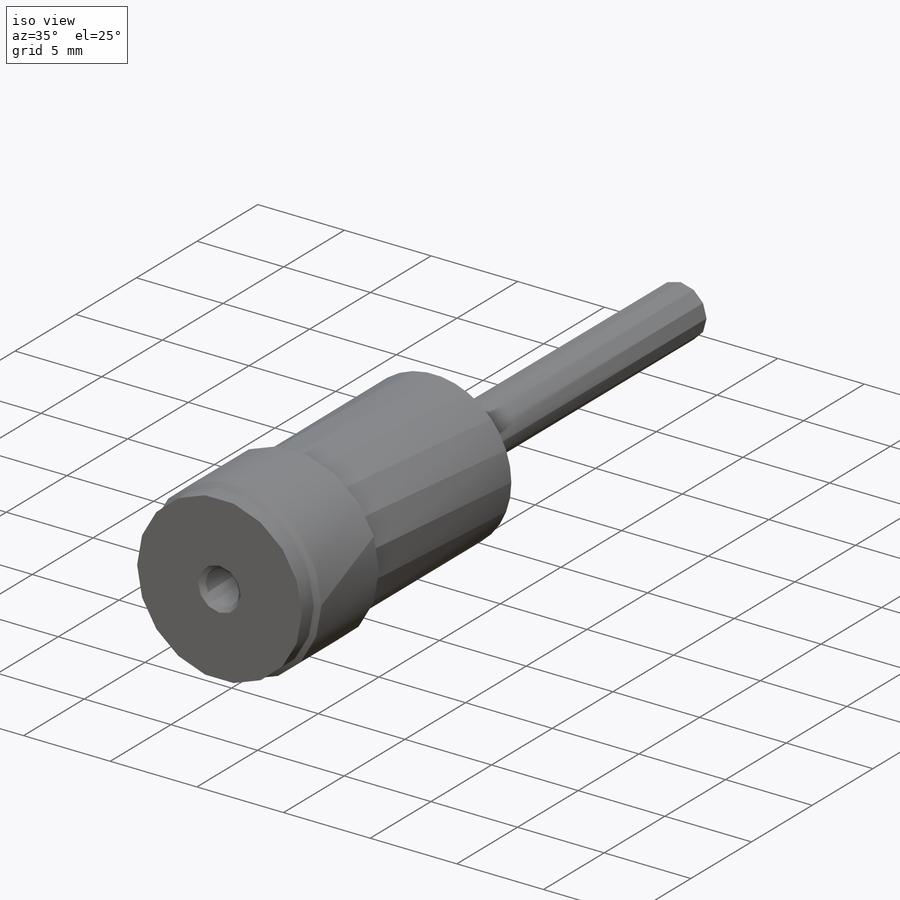
[diagram: iso view]
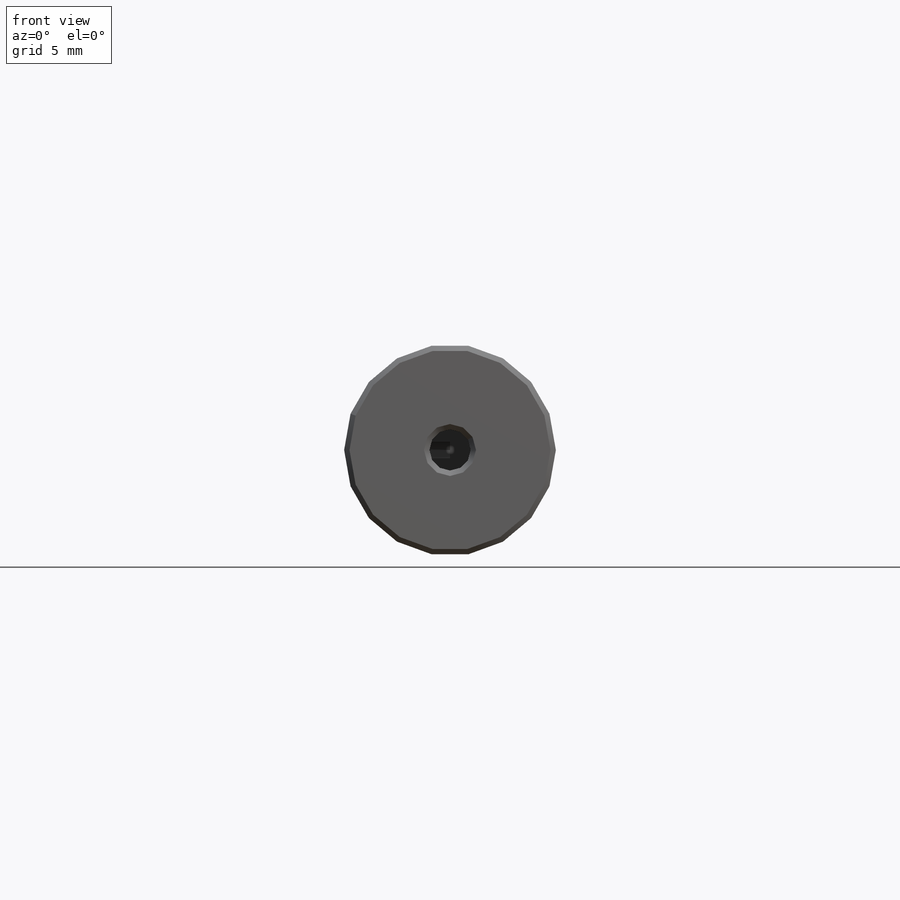
[diagram: front view]
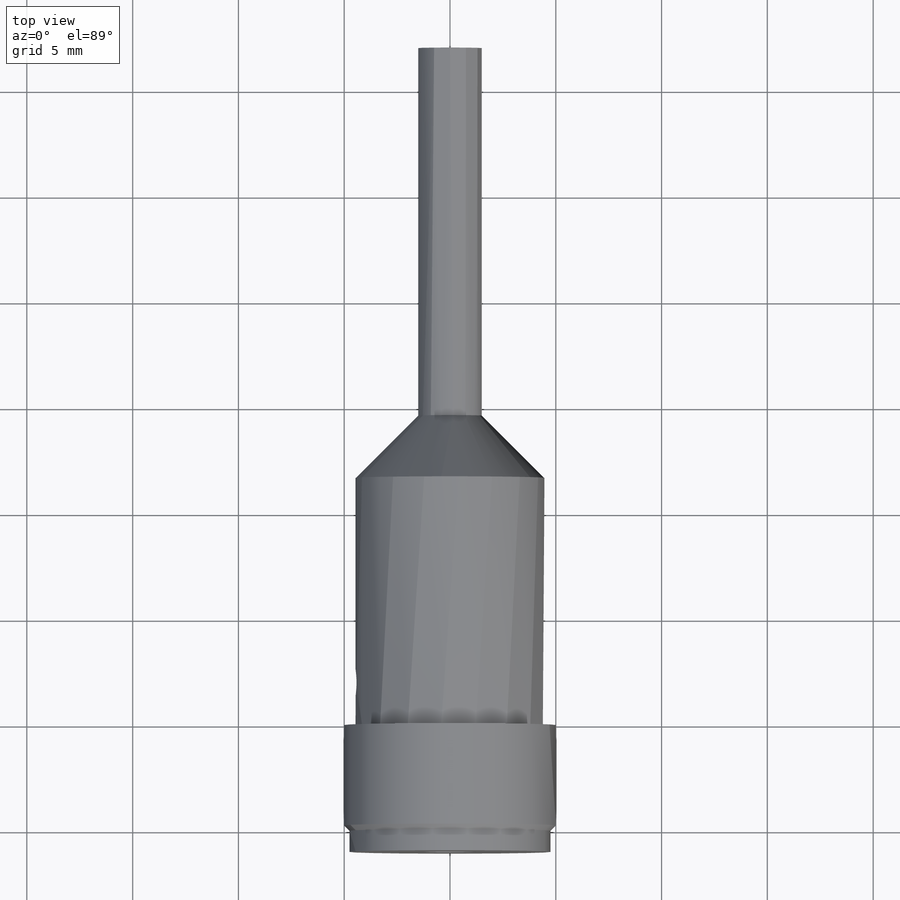
[diagram: top view]
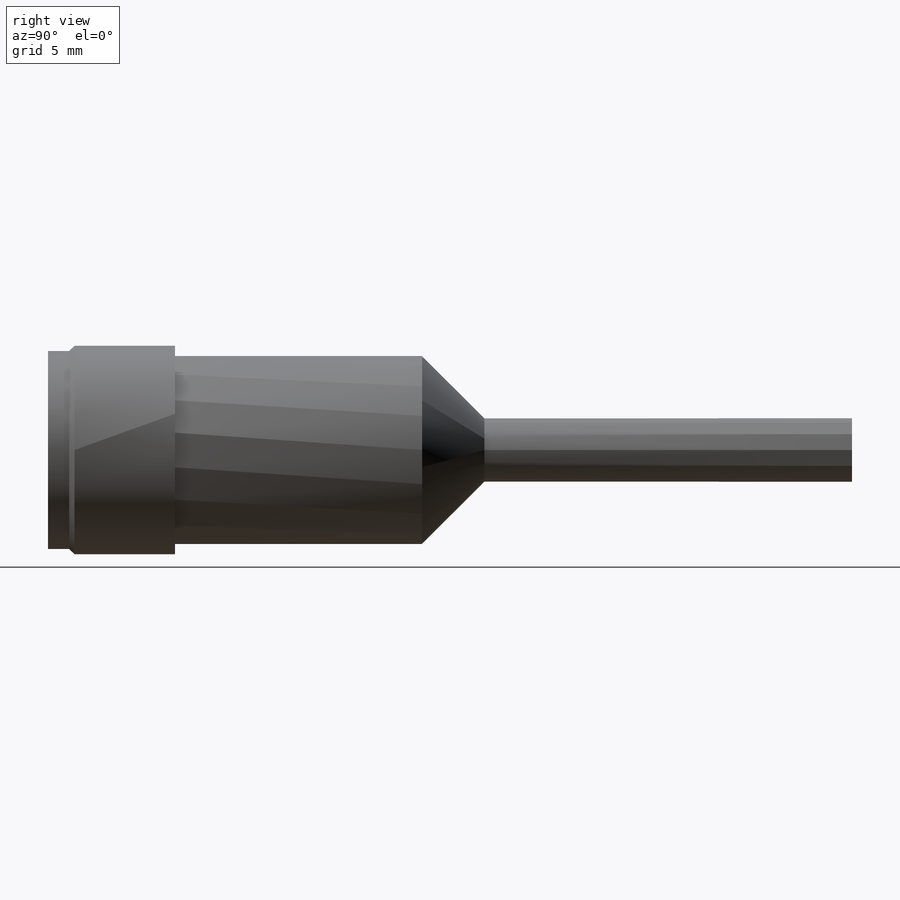
[diagram: right view]
SOLIDWORKS PART (.sldprt)
format: sldprt  version: not decoded by parser v0  size: 257,024 bytes
history: native  units: mm
features: sketch x6, cut_extrude x3, chamfer x3, extrude x2, fillet x2, material x1, cut_revolve x1 + 1 further entry (+13 scaffold rows collapsed)
feature tree (32):
  scaffold x13  (default folders/planes/origin — collapsed)
  material  "PEEK"
  "Origin"  ID=-1
  sketch  "Sketch1"  dims[D1=10.0076mm]
  extrude  "Extrude1"  Depth=37mm
  sketch  "Sketch2"  dims[D1=1.9492mm]
  cut_extrude  "Extrude2"  Depth=7.5mm
  fillet  "Fillet1"  Radius=0.508mm
  sketch  "Sketch3"  dims[D1=3.0mm]
  cut_extrude  "Extrude3"  Depth=20.32mm
  fillet  "Fillet2"  Radius=0.508mm
  sketch  "Sketch5"  dims[D1=1.27mm D2=7.0mm]
  cut_extrude  "Extrude4"  Depth=20.32mm
  chamfer  "Chamfer2"  Distance=0.254mm Angle=45deg
  sketch  "Sketch6"  dims[c1.D1=5.0mm c1.D2=0.54mm c1.D3=3.335mm c2.D1=0.54mm c2.D2=5.0mm]
  cut_revolve  "Cut-Revolve1"  Angle=360deg
  chamfer  "Chamfer3"  Distance=2.9464mm Angle=45deg
  sketch  "Sketch8"
  extrude  "Boss-Extrude1"  Depth=1mm
  chamfer  "Chamfer4"  Distance=0.254mm Angle=45deg
decode coverage: 16 of 17 modeling features carry decoded parameters; 1 rows unclassified (native names shown)
note: suppression state not decoded; provenance and decode notes live in map.json
